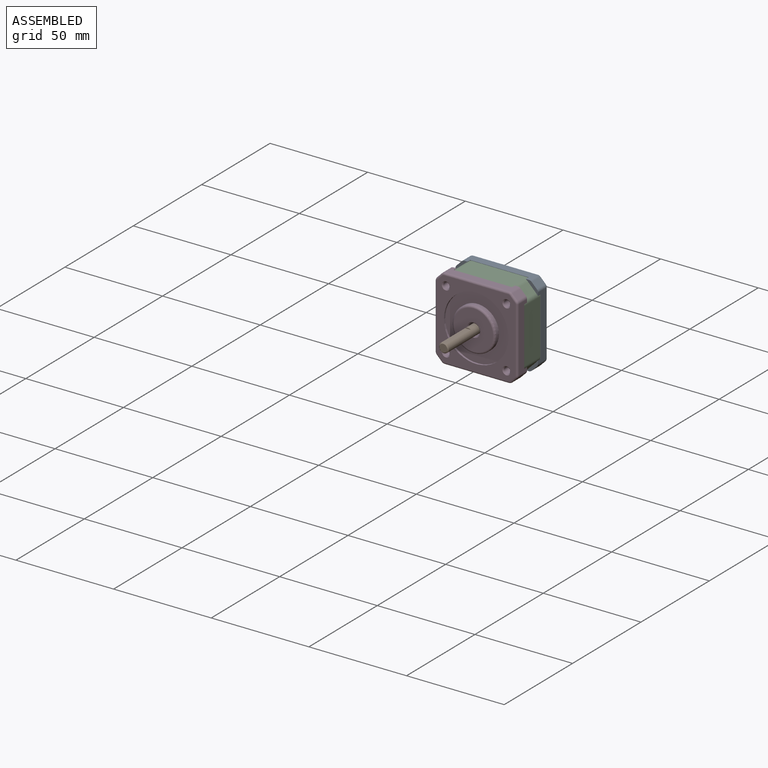
[diagram: assembled view]
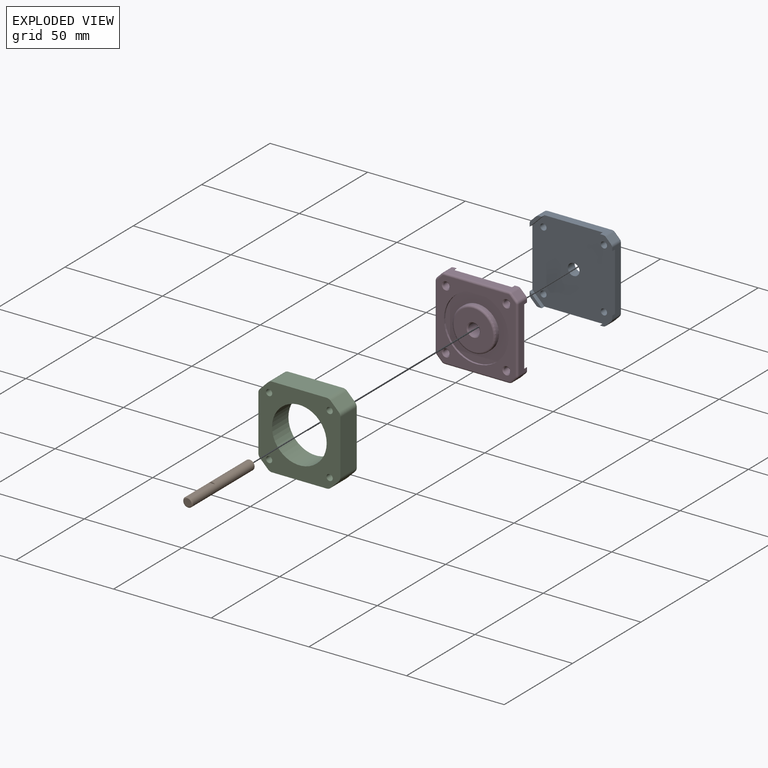
[diagram: exploded view]
GUIDED TOUR — MATED ASSEMBLY (Onshape document 586a2ea016d8b51097993020, AutoMate assembly 586a2ea016d8b51097993020_562ff680bc803435d7c319cf_0640a5bf43734379909cf9ba_default)

This assembly has 4 components, labeled P0..P3 below (a component is one placed occurrence of a part; the same part can appear more than once), held together by 3 mates. A mate is a constraint between two components; its type names the relative motion it leaves free:
  FASTENED — locks the two components together rigidly (no relative motion),
  REVOLUTE — leaves rotation about the listed axis free (a hinge).
Axis/direction vectors are unit vectors and 'through' points are millimeter coordinates, both in the assembly's world frame.

MATES
  1. FASTENED "Fastened 2": P1 <-> P0, direction (0.000, 1.000, 0.000) through (3.60, -18.00, 48.95) mm
  2. FASTENED "Fastened 1": P0 <-> P2, direction (0.000, -1.000, 0.000) through (-11.90, -23.00, 64.45) mm
  3. REVOLUTE "Revolute 1": P3 <-> P2, axis (0.000, 1.000, 0.000) through (19.10, -35.00, 33.45) mm

ASSEMBLY ORDER
  1. P3 — the base component [order verified]
  2. P1 [order verified]
  3. P2 [order verified]
  4. P0 [order verified]
Order-tag legend:
  [order verified] — this step's position reverses a verified removal order: the component was checked to insert without passing through the ones already placed.

Of the 4 components, 1 carries the full construction recipe — the FeatureScript program that regenerates the part's solid from scratch; the rest are supplied as boundary geometry only.
Each toured component is shown spotlighted twice — in the assembled view, then in the exploded view, where a leader line traces a displaced component back to its assembled socket (saturated green if recipe-attached, orange if geometry-only; every other component desaturated gray) — followed by its recipe or geometry summary and the mates that hold it.
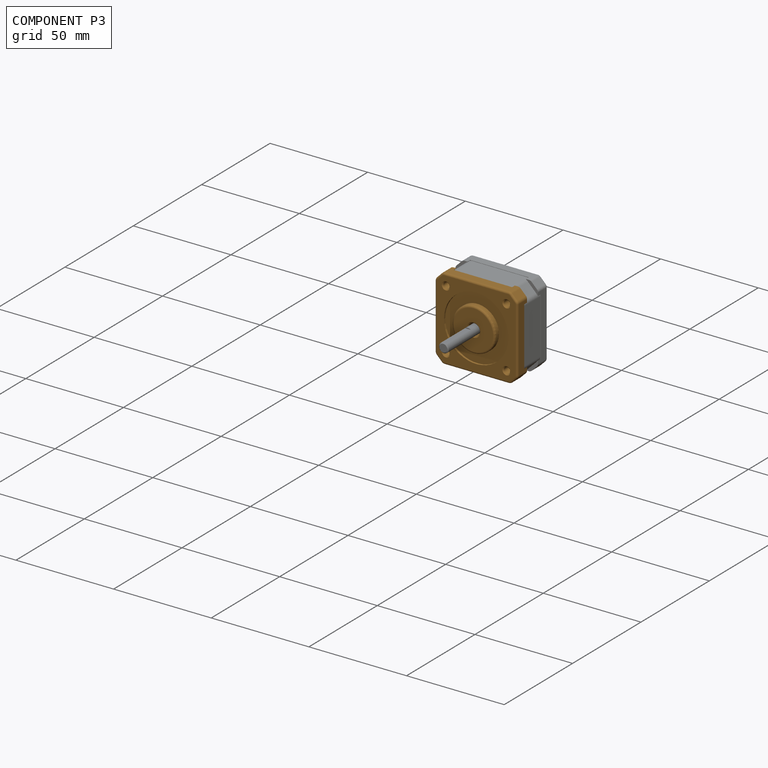
[diagram: component P3 — assembled]
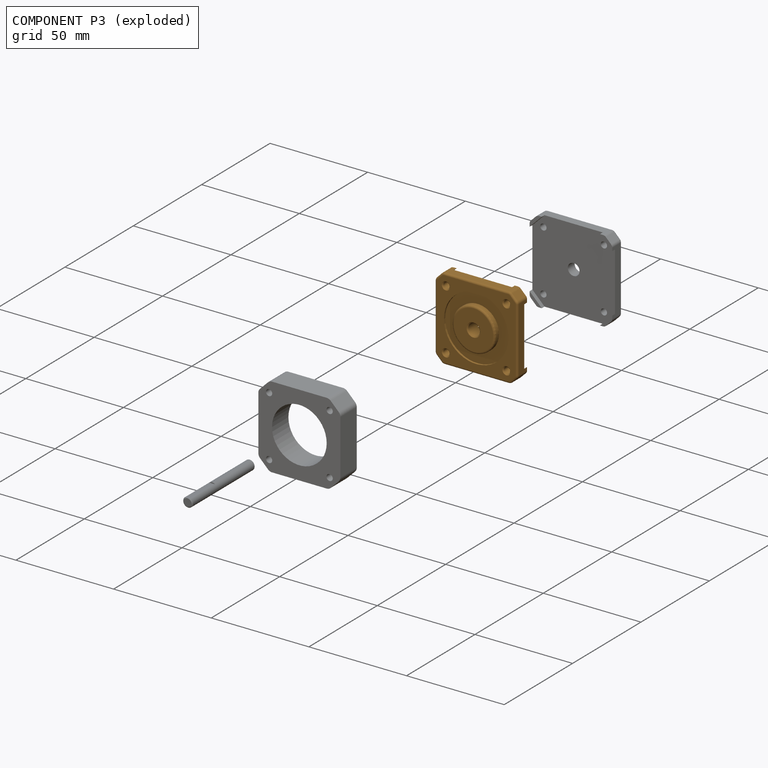
[diagram: component P3 — exploded]
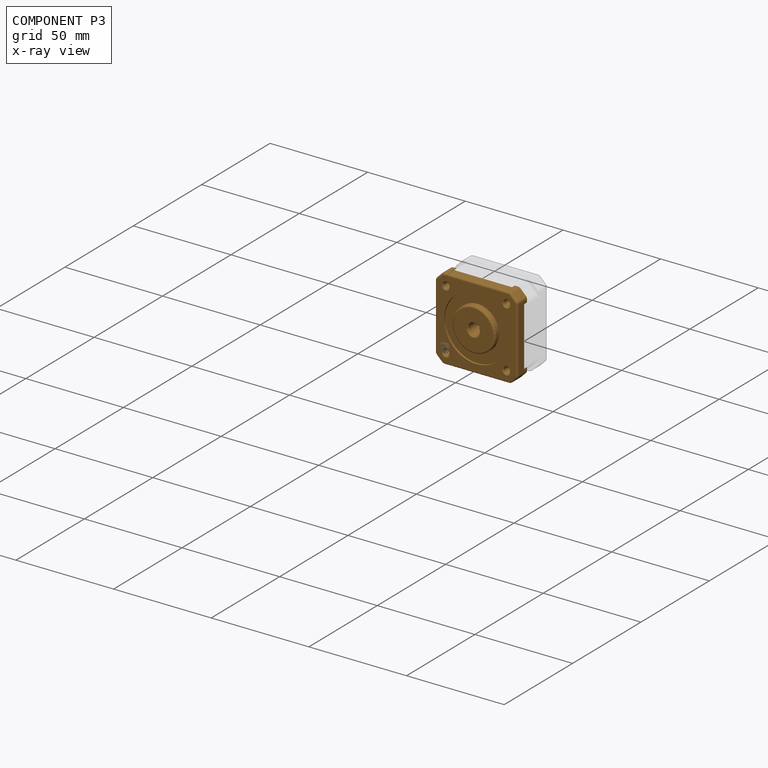
[diagram: component P3 — x-ray view]
COMPONENT P3 — geometry summary (no construction recipe available for this part):
  bounding box: 42.6 x 42.6 x 9.0 mm
  B-rep topology: 1 solid, 57 faces, 286 edges
  volume: 8759 mm^3 (54% of its bounding box)
  symmetry: 4-fold rotationally symmetric about the y axis; mirror-symmetric across its x mid-plane, z mid-plane
Held by: REVOLUTE mate "Revolute 1" to P2.
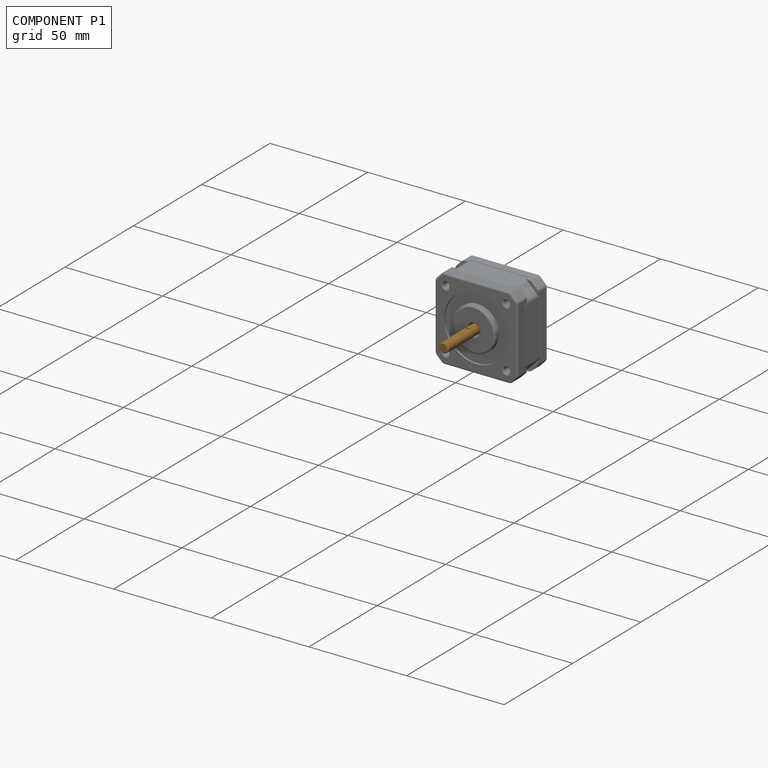
[diagram: component P1 — assembled]
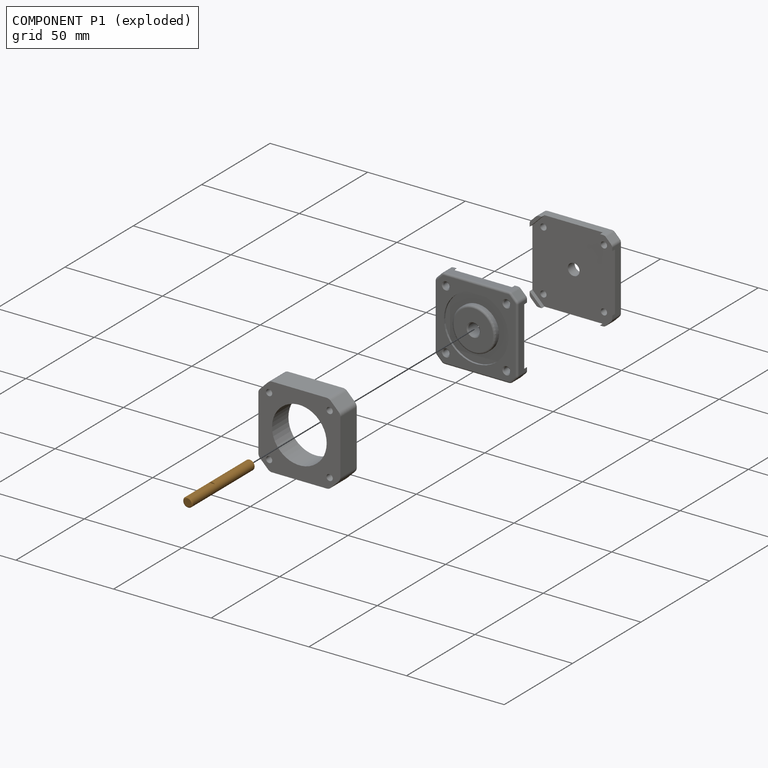
[diagram: component P1 — exploded]
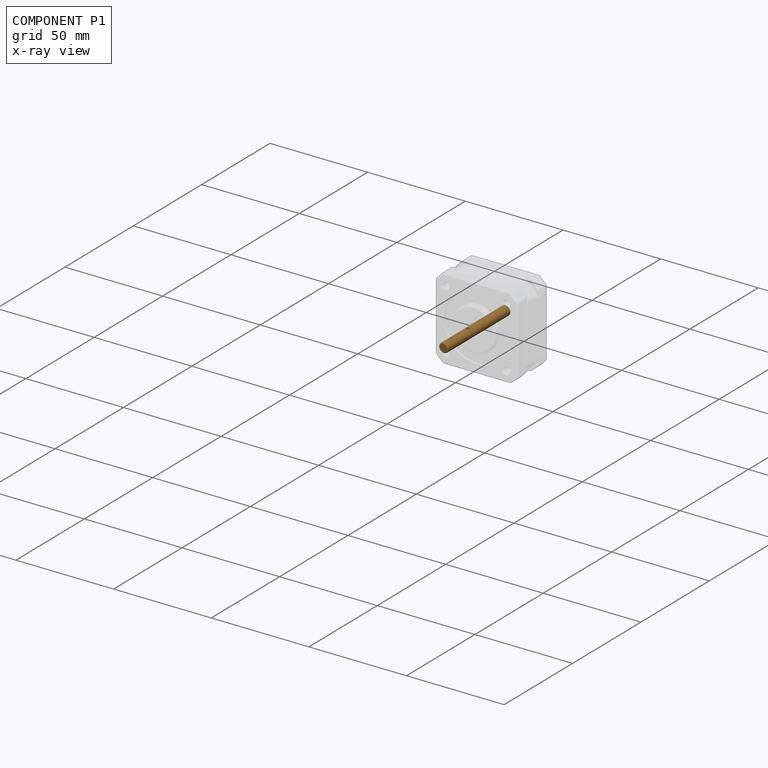
[diagram: component P1 — x-ray view]
COMPONENT P1 — geometry summary (no construction recipe available for this part):
  bounding box: 46.0 x 5.0 x 5.0 mm
  B-rep topology: 1 solid, 7 faces, 26 edges
  volume: 881 mm^3 (77% of its bounding box)
  symmetry: mirror-symmetric across its x mid-plane
Held by: FASTENED mate "Fastened 2" to P0.
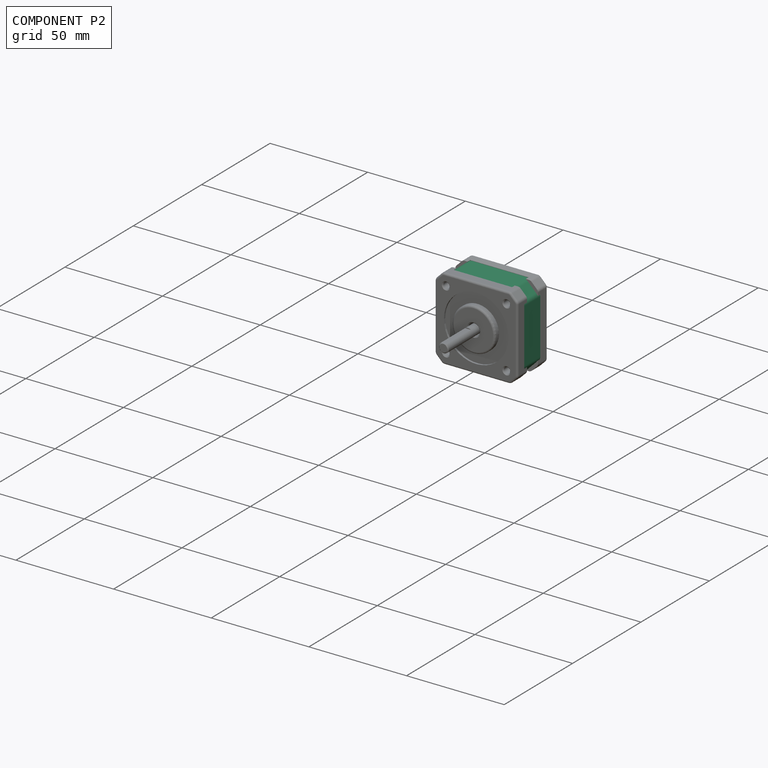
[diagram: component P2 — assembled]
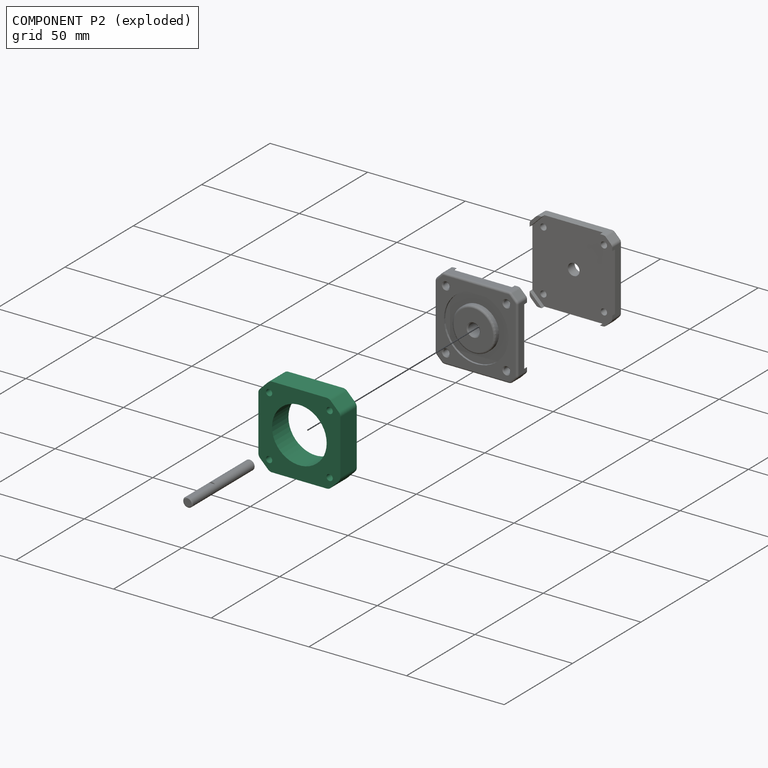
[diagram: component P2 — exploded]
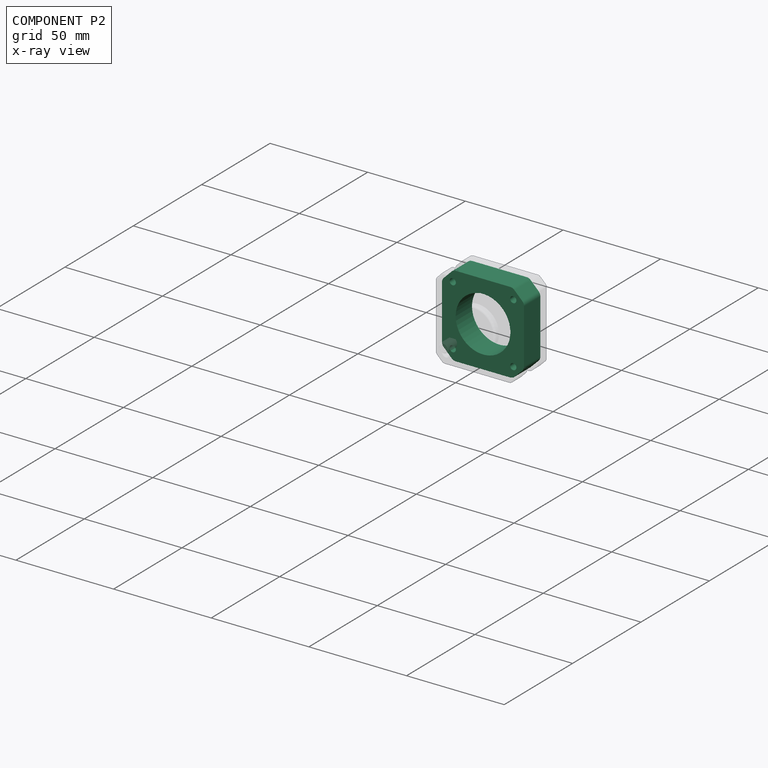
[diagram: component P2 — x-ray view]
COMPONENT P2 — recipe-attached (CADFS 00416040, mesh-verified: the recipe's output STEP matches this component's geometry to below the mesh-comparison resolution (tessellation chordal tolerance ~0.0909 mm)).
Held by: FASTENED mate "Fastened 1" to P0; REVOLUTE mate "Revolute 1" to P3.
Construction recipe (FeatureScript — the CAD program that rebuilds this solid; sketch coordinates are in the units given by the * unit suffixes, e.g. mm):

FeatureScript 1511;
import(path : "onshape/std/geometry.fs", version : "1511.0");
import(path : "onshape/std/common.fs", version : "1511.0");
const mm = millimeter;
const VERTEX = EntityType.VERTEX;
const EDGE = EntityType.EDGE;
const FACE = EntityType.FACE;
const BODY = EntityType.BODY;
function v(x, y){return vector(x, y);}
function OD(order){return orderDisambiguation(order);}
function OSD(set){return originalSetDisambiguation(set);}
function TD(topology){return topologyDisambiguation(topology);}
function TDD(query){return trueDependencyDisambiguation(query);}
function sQuery(a, b, c) {return sketchEntityQuery(a, b, c);}

annotation { "Feature Type Name" : "Feature", "Feature Type Description" : "" }
export const myFeature = defineFeature(function(context is Context, id is Id, definition is map)
    precondition{}
    {
        {
            var Q0;
            Q0=qCreatedBy(makeId("Front.planeOp"),FACE);
            var sketch = newSketch(context, id + "F0", { "sketchPlane" : qUnion([Q0])});
            skLineSegment(sketch, "E0.bottom", {"start": v(21, -21) * mm, "end": v(-21, -21) * mm});
            skLineSegment(sketch, "E0.top", {"start": v(21, 21) * mm, "end": v(-21, 21) * mm});
            skLineSegment(sketch, "E0.left", {"start": v(21, -21) * mm, "end": v(21, 21) * mm});
            skLineSegment(sketch, "E0.right", {"start": v(-21, -21) * mm, "end": v(-21, 21) * mm});
            skPoint(sketch, "E0.middle", {"position": v(0, 0) * mm});
            skCircle(sketch, "E1", {"center": v(-15.5, -15.5) * mm, "radius": 1.6 * mm});
            skPoint(sketch, "E1.first.point", {"position": v(-16.8, -14.57) * mm});
            skPoint(sketch, "E1.second.point", {"position": v(-13.92, -15.27) * mm});
            skPoint(sketch, "E1.third.point", {"position": v(-15.32, -17.09) * mm});
            skCircle(sketch, "E2", {"center": v(15.5, -15.5) * mm, "radius": 1.6 * mm});
            skPoint(sketch, "E2.first.point", {"position": v(14.22, -14.55) * mm});
            skPoint(sketch, "E2.second.point", {"position": v(17.06, -15.13) * mm});
            skPoint(sketch, "E2.third.point", {"position": v(15.08, -17.05) * mm});
            skCircle(sketch, "E3", {"center": v(15.5, 15.5) * mm, "radius": 1.6 * mm});
            skPoint(sketch, "E3.first.point", {"position": v(14.45, 16.7) * mm});
            skPoint(sketch, "E3.second.point", {"position": v(16.88, 16.3) * mm});
            skPoint(sketch, "E3.third.point", {"position": v(15.65, 13.9) * mm});
            skCircle(sketch, "E4", {"center": v(-15.5, 15.5) * mm, "radius": 1.6 * mm});
            skPoint(sketch, "E4.first.point", {"position": v(-16.8, 16.43) * mm});
            skPoint(sketch, "E4.second.point", {"position": v(-14.02, 16.1) * mm});
            skPoint(sketch, "E4.third.point", {"position": v(-15.65, 13.9) * mm});
            skCircle(sketch, "E5", {"center": v(0, 0) * mm, "radius": 14 * mm});
            skPoint(sketch, "E5.first.point", {"position": v(-10.66, 9.09) * mm});
            skPoint(sketch, "E5.second.point", {"position": v(12.57, 6.16) * mm});
            skPoint(sketch, "E5.third.point", {"position": v(-0.27, -14) * mm});
            skLineSegment(sketch, "E6", {"start": v(-21, -15.2) * mm, "end": v(21, -15.2) * mm, "construction": true});
            skLineSegment(sketch, "E7", {"start": v(-21, 15.2) * mm, "end": v(21, 15.2) * mm, "construction": true});
            skLineSegment(sketch, "E8", {"start": v(-15.2, 21) * mm, "end": v(-15.2, -21) * mm, "construction": true});
            skLineSegment(sketch, "E9", {"start": v(15.2, 21) * mm, "end": v(15.2, -21) * mm, "construction": true});
            skLineSegment(sketch, "E10", {"start": v(-21, 15.2) * mm, "end": v(-15.2, 21) * mm});
            skLineSegment(sketch, "E11", {"start": v(15.2, 21) * mm, "end": v(21, 15.2) * mm});
            skLineSegment(sketch, "E12", {"start": v(21, -15.2) * mm, "end": v(15.2, -21) * mm});
            skLineSegment(sketch, "E13", {"start": v(-15.2, -21) * mm, "end": v(-21, -15.2) * mm});
            skSolve(sketch);
        }
        {
            var Q0;
            Q0=makeQuery(id+"F0.imprint","IMPRINT",FACE,{"disambiguationData":[TD([[makeQuery(id+"F0.imprint","IMPRINT",EDGE,{"derivedFrom":sQuery(id+"F0.wireOp",EDGE,"E1")}),-1.0]])]});
            extrude(context, id + "F1", {"entities" : qUnion([Q0]), "depth" : 12 * mm});
        }
        {
            var Q0;
            Q0=makeQuery(id+"F1.opExtrude","SWEPT_EDGE",EDGE,{"disambiguationData":[OSD([sQuery(id+"F0.wireOp",EDGE,"E0.right"),sQuery(id+"F0.wireOp",EDGE,"E13")])]});
            var Q1;
            Q1=makeQuery(id+"F1.opExtrude","SWEPT_EDGE",EDGE,{"disambiguationData":[OSD([sQuery(id+"F0.wireOp",EDGE,"E0.bottom"),sQuery(id+"F0.wireOp",EDGE,"E13")])]});
            var Q2;
            Q2=makeQuery(id+"F1.opExtrude","SWEPT_EDGE",EDGE,{"disambiguationData":[OSD([sQuery(id+"F0.wireOp",EDGE,"E0.bottom"),sQuery(id+"F0.wireOp",EDGE,"E12")])]});
            var Q3;
            Q3=makeQuery(id+"F1.opExtrude","SWEPT_EDGE",EDGE,{"disambiguationData":[OSD([sQuery(id+"F0.wireOp",EDGE,"E0.left"),sQuery(id+"F0.wireOp",EDGE,"E12")])]});
            var Q4;
            Q4=makeQuery(id+"F1.opExtrude","SWEPT_EDGE",EDGE,{"disambiguationData":[OSD([sQuery(id+"F0.wireOp",EDGE,"E0.left"),sQuery(id+"F0.wireOp",EDGE,"E11")])]});
            var Q5;
            Q5=makeQuery(id+"F1.opExtrude","SWEPT_EDGE",EDGE,{"disambiguationData":[OSD([sQuery(id+"F0.wireOp",EDGE,"E0.top"),sQuery(id+"F0.wireOp",EDGE,"E11")])]});
            var Q6;
            Q6=makeQuery(id+"F1.opExtrude","SWEPT_EDGE",EDGE,{"disambiguationData":[OSD([sQuery(id+"F0.wireOp",EDGE,"E0.right"),sQuery(id+"F0.wireOp",EDGE,"E10")])]});
            var Q7;
            Q7=makeQuery(id+"F1.opExtrude","SWEPT_EDGE",EDGE,{"disambiguationData":[OSD([sQuery(id+"F0.wireOp",EDGE,"E0.top"),sQuery(id+"F0.wireOp",EDGE,"E10")])]});
            fillet(context, id + "F2", {"entities" : qUnion([Q0, Q1, Q2, Q3, Q4, Q5, Q6, Q7]), "radius" : 3 * mm, "tangentPropagation" : true, "allowEdgeOverflow" : false});
        }
    });
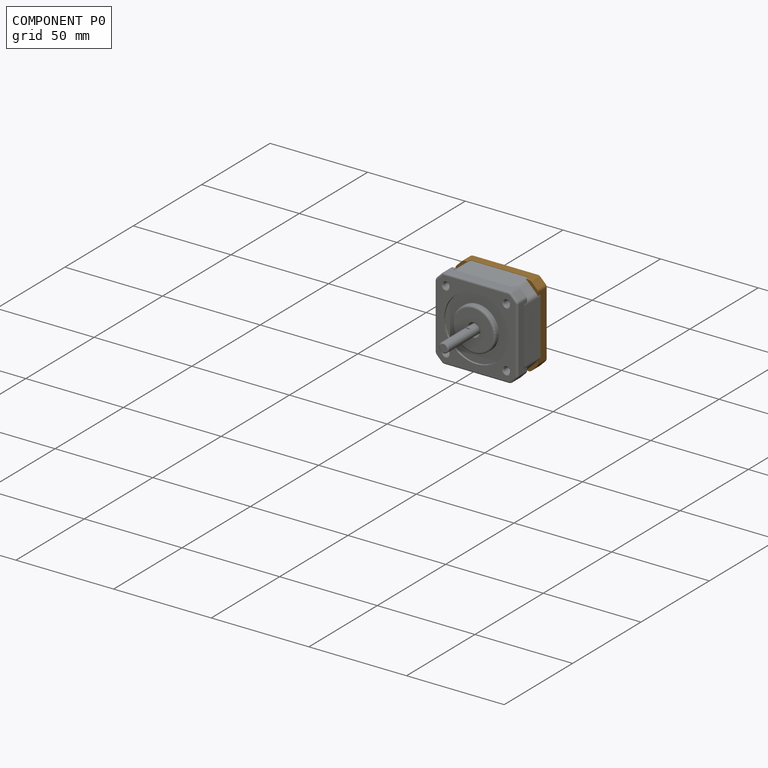
[diagram: component P0 — assembled]
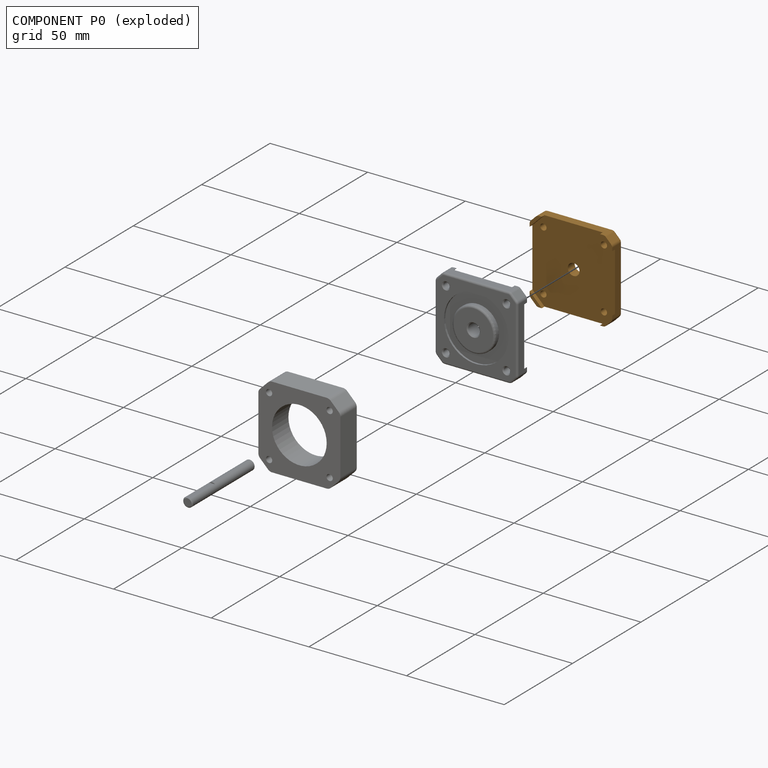
[diagram: component P0 — exploded]
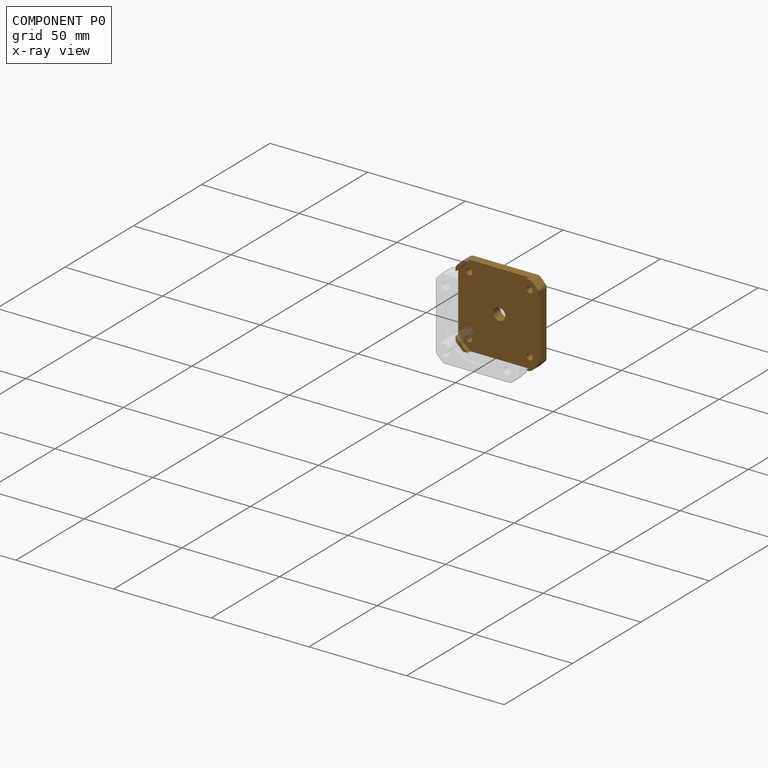
[diagram: component P0 — x-ray view]
COMPONENT P0 — geometry summary (no construction recipe available for this part):
  bounding box: 42.6 x 42.6 x 7.0 mm
  B-rep topology: 1 solid, 51 faces, 262 edges
  volume: 8548 mm^3 (67% of its bounding box)
  symmetry: 4-fold rotationally symmetric about the y axis; mirror-symmetric across its x mid-plane, z mid-plane
Held by: FASTENED mate "Fastened 2" to P1; FASTENED mate "Fastened 1" to P2.
PROVENANCE & LICENSES
Assembly (occurrences, transforms, mates, per-part STEP geometry): AutoMate dataset, Zenodo record 7776208, CC0.
Construction recipes: CADFS (HuggingFace VladPyatov/CADFS, CC-BY-4.0, layered over the ABC dataset), FeatureScript reconstruction programs keyed by ABC model id.
Join: ABC meta listings map ABC model id -> Onshape documentId; within a shared document, parts are matched by geometric signature (bounding-box dims + volume at 0.1% relative tolerance, exact B-rep face/solid counts).
Verification: 1 of this assembly's 4 components carries a recipe attachment, and every attachment is mesh-verified: the CADFS STEP and the AutoMate member STEP were compared as meshes in their shared local frame (symmetric sampled-point-to-mesh distance); worst across the 1 attachment: below the mesh-comparison resolution (tessellation chordal tolerance ~0.0909 mm) on a 61 mm part.
Renders: orthographic iso camera (az 35 / el 25); the floor grid conveys scale (grid pitch printed in each image; no ruler). In the exploded view each component is displaced by its stored offset vector: the offsets alone carry the explosion direction (mate normal/axis signs are not orientation cues and do not encode it), and separation distances are assigned per mate-chain, not proportionally to assembly-order depth.
